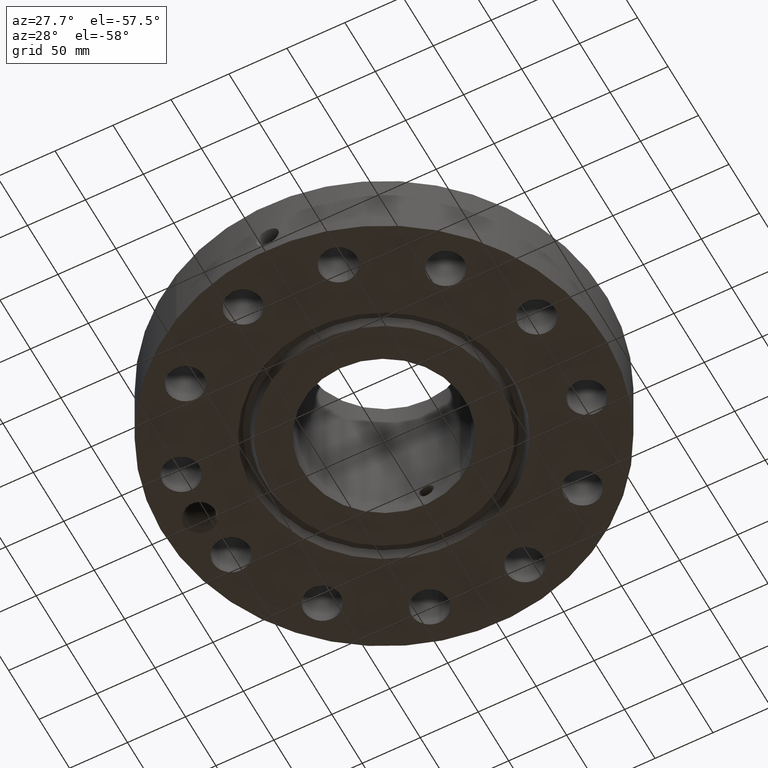
[diagram: clean part render]
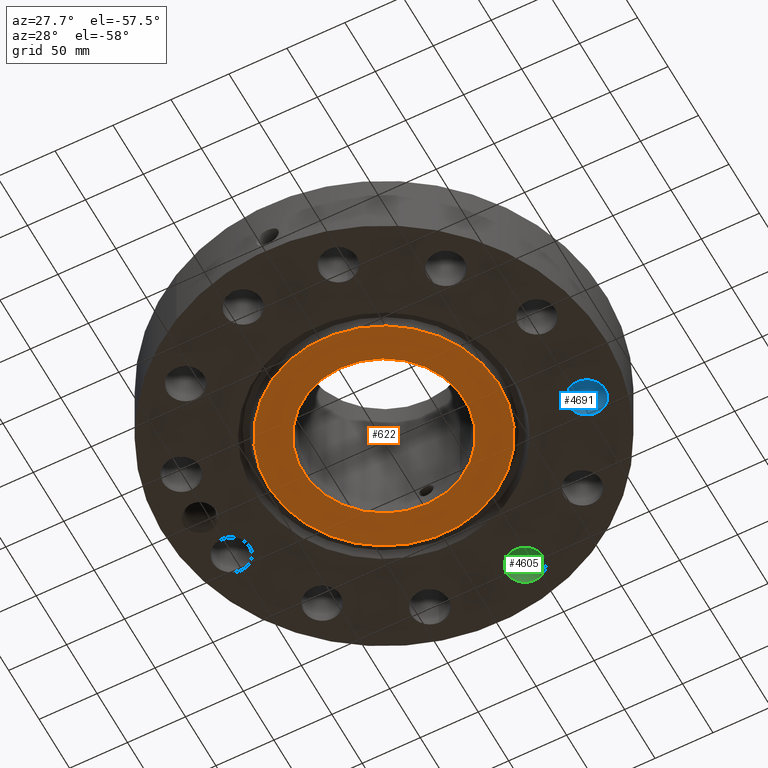
[diagram: same view with three faces highlighted in distinct colors, each labeled with its STEP entity id]
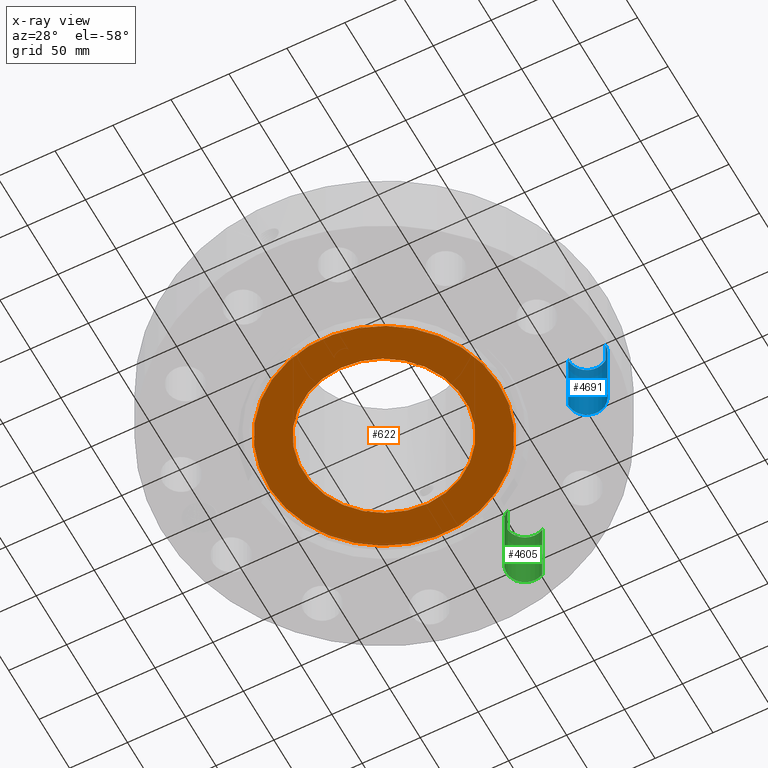
[diagram: x-ray of the same camera — body ghosted, the three highlighted faces saturated]
A machine part, auxiliary view with three faces highlighted in distinct colors.
The next image is the same camera in x-ray (body ghosted, the three faces saturated) — at least one of them is partly hidden behind the body in this view.
Their STEP definitions:

[orange] entity #622 — the highlighted planar face has unit normal (0, 0, -1).
#252=AXIS2_PLACEMENT_3D('Circle Axis2P3D',#250,#251,$) ;
#543=AXIS2_PLACEMENT_3D('Circle Axis2P3D',#541,#542,$) ;
#598=AXIS2_PLACEMENT_3D('Plane Axis2P3D',#595,#596,#597) ;
#602=AXIS2_PLACEMENT_3D('Circle Axis2P3D',#600,#601,$) ;
#611=AXIS2_PLACEMENT_3D('Circle Axis2P3D',#609,#610,$) ;
#247=CARTESIAN_POINT('Vertex',(1.31865994394,2.41379083649,-8.39223703654E-015)) ;
#250=CARTESIAN_POINT('Axis2P3D Location',(0.,0.,-8.95171950564E-015)) ;
#254=CARTESIAN_POINT('Vertex',(-1.31865994394,-2.41379083649,-8.39223703654E-015)) ;
#541=CARTESIAN_POINT('Axis2P3D Location',(0.,0.,-8.95171950564E-015)) ;
#595=CARTESIAN_POINT('Axis2P3D Location',(0.,2.75050000001,0.)) ;
#600=CARTESIAN_POINT('Axis2P3D Location',(-5.59482469102E-016,5.59482469102E-016,0.)) ;
#604=CARTESIAN_POINT('Vertex',(-1.88006724964,3.44144001647,0.)) ;
#606=CARTESIAN_POINT('Vertex',(1.88006724964,-3.44144001647,2.09805925913E-016)) ;
#609=CARTESIAN_POINT('Axis2P3D Location',(5.59482469102E-016,0.,0.)) ;
#251=DIRECTION('Axis2P3D Direction',(0.,0.,-0.0393700787402)) ;
#542=DIRECTION('Axis2P3D Direction',(0.,0.,-0.0393700787402)) ;
#596=DIRECTION('Axis2P3D Direction',(0.,0.,-0.0393700787402)) ;
#597=DIRECTION('Axis2P3D XDirection',(0.0393700787402,0.,0.)) ;
#601=DIRECTION('Axis2P3D Direction',(0.,0.,-0.0393700787402)) ;
#610=DIRECTION('Axis2P3D Direction',(0.,0.,-0.0393700787402)) ;
#615=ORIENTED_EDGE('',*,*,#608,.T.) ;
#616=ORIENTED_EDGE('',*,*,#613,.T.) ;
#619=ORIENTED_EDGE('',*,*,#256,.F.) ;
#620=ORIENTED_EDGE('',*,*,#545,.F.) ;
#621=FACE_BOUND('',#618,.T.) ;
#622=ADVANCED_FACE('PartBody',(#617,#621),#599,.T.) ;
#253=CIRCLE('generated circle',#252,2.75050000001) ;
#544=CIRCLE('generated circle',#543,2.75050000001) ;
#603=CIRCLE('generated circle',#602,3.92150000002) ;
#612=CIRCLE('generated circle',#611,3.92150000002) ;
#256=EDGE_CURVE('',#248,#255,#253,.T.) ;
#545=EDGE_CURVE('',#255,#248,#544,.T.) ;
#608=EDGE_CURVE('',#605,#607,#603,.T.) ;
#613=EDGE_CURVE('',#607,#605,#612,.T.) ;
#614=EDGE_LOOP('',(#615,#616)) ;
#618=EDGE_LOOP('',(#619,#620)) ;
#617=FACE_OUTER_BOUND('',#614,.T.) ;
#599=PLANE('',#598) ;
#248=VERTEX_POINT('',#247) ;
#255=VERTEX_POINT('',#254) ;
#605=VERTEX_POINT('',#604) ;
#607=VERTEX_POINT('',#606) ;

[blue] entity #4691 — the highlighted cylindrical surface (edge-blend (fillet) strip) has radius 15.875 mm, axis along (0, 0, -1).
#3201=AXIS2_PLACEMENT_3D('Circle Axis2P3D',#3199,#3200,$) ;
#4664=AXIS2_PLACEMENT_3D('Cylinder Axis2P3D',#4661,#4662,#4663) ;
#4675=AXIS2_PLACEMENT_3D('Circle Axis2P3D',#4673,#4674,$) ;
#3194=CARTESIAN_POINT('Vertex',(6.66186239047,1.6323668977,2.50200000001)) ;
#3196=CARTESIAN_POINT('Vertex',(5.41221043819,1.60287116609,2.50200000001)) ;
#3199=CARTESIAN_POINT('Axis2P3D Location',(6.03703641433,1.6176190319,2.50200000001)) ;
#4661=CARTESIAN_POINT('Axis2P3D Location',(6.03703641433,1.6176190319,2.49806299214)) ;
#4666=CARTESIAN_POINT('Line Origine',(5.41221043819,1.60287116609,1.25100000001)) ;
#4670=CARTESIAN_POINT('Vertex',(5.41221043819,1.60287116609,0.)) ;
#4673=CARTESIAN_POINT('Axis2P3D Location',(6.03703641433,1.6176190319,0.)) ;
#4677=CARTESIAN_POINT('Vertex',(6.66186239047,1.6323668977,0.)) ;
#4680=CARTESIAN_POINT('Line Origine',(6.66186239047,1.6323668977,1.25100000001)) ;
#3200=DIRECTION('Axis2P3D Direction',(0.,0.,-0.0393700787402)) ;
#4662=DIRECTION('Axis2P3D Direction',(0.,0.,-0.0393700787402)) ;
#4663=DIRECTION('Axis2P3D XDirection',(0.039359116607,0.000928999420902,0.)) ;
#4667=DIRECTION('Vector Direction',(0.,0.,-0.0393700787402)) ;
#4674=DIRECTION('Axis2P3D Direction',(0.,0.,-0.0393700787402)) ;
#4681=DIRECTION('Vector Direction',(0.,0.,-0.0393700787402)) ;
#4668=VECTOR('Line Direction',#4667,0.0393700787402) ;
#4682=VECTOR('Line Direction',#4681,0.0393700787402) ;
#4686=ORIENTED_EDGE('',*,*,#4672,.F.) ;
#4687=ORIENTED_EDGE('',*,*,#4679,.T.) ;
#4688=ORIENTED_EDGE('',*,*,#4684,.T.) ;
#4689=ORIENTED_EDGE('',*,*,#3203,.F.) ;
#4691=ADVANCED_FACE('PartBody',(#4690),#4665,.F.) ;
#3202=CIRCLE('generated circle',#3201,0.625000000003) ;
#4676=CIRCLE('generated circle',#4675,0.625000000003) ;
#4665=CYLINDRICAL_SURFACE('generated cylinder',#4664,0.625000000003) ;
#3203=EDGE_CURVE('',#3197,#3195,#3202,.T.) ;
#4672=EDGE_CURVE('',#4671,#3197,#4669,.F.) ;
#4679=EDGE_CURVE('',#4671,#4678,#4676,.T.) ;
#4684=EDGE_CURVE('',#4678,#3195,#4683,.F.) ;
#4685=EDGE_LOOP('',(#4686,#4687,#4688,#4689)) ;
#4690=FACE_OUTER_BOUND('',#4685,.T.) ;
#4669=LINE('Line',#4666,#4668) ;
#4683=LINE('Line',#4680,#4682) ;
#3195=VERTEX_POINT('',#3194) ;
#3197=VERTEX_POINT('',#3196) ;
#4671=VERTEX_POINT('',#4670) ;
#4678=VERTEX_POINT('',#4677) ;

[green] entity #4605 — the highlighted cylindrical surface (edge-blend (fillet) strip) has radius 15.875 mm, axis along (0, 0, -1).
#3165=AXIS2_PLACEMENT_3D('Circle Axis2P3D',#3163,#3164,$) ;
#4578=AXIS2_PLACEMENT_3D('Cylinder Axis2P3D',#4575,#4576,#4577) ;
#4589=AXIS2_PLACEMENT_3D('Circle Axis2P3D',#4587,#4588,$) ;
#3158=CARTESIAN_POINT('Vertex',(1.91725999353,6.58552551551,2.50200000001)) ;
#3160=CARTESIAN_POINT('Vertex',(1.31797807027,5.48854731315,2.50200000001)) ;
#3163=CARTESIAN_POINT('Axis2P3D Location',(1.6176190319,6.03703641433,2.50200000001)) ;
#4575=CARTESIAN_POINT('Axis2P3D Location',(1.6176190319,6.03703641433,2.49806299214)) ;
#4580=CARTESIAN_POINT('Line Origine',(1.31797807027,5.48854731315,1.25100000001)) ;
#4584=CARTESIAN_POINT('Vertex',(1.31797807027,5.48854731315,0.)) ;
#4587=CARTESIAN_POINT('Axis2P3D Location',(1.6176190319,6.03703641433,0.)) ;
#4591=CARTESIAN_POINT('Vertex',(1.91725999353,6.58552551551,0.)) ;
#4594=CARTESIAN_POINT('Line Origine',(1.91725999353,6.58552551551,1.25100000001)) ;
#3164=DIRECTION('Axis2P3D Direction',(0.,0.,-0.0393700787402)) ;
#4576=DIRECTION('Axis2P3D Direction',(0.,0.,-0.0393700787402)) ;
#4577=DIRECTION('Axis2P3D XDirection',(0.0188750212049,0.0345504945626,0.)) ;
#4581=DIRECTION('Vector Direction',(0.,0.,-0.0393700787402)) ;
#4588=DIRECTION('Axis2P3D Direction',(0.,0.,-0.0393700787402)) ;
#4595=DIRECTION('Vector Direction',(0.,0.,-0.0393700787402)) ;
#4582=VECTOR('Line Direction',#4581,0.0393700787402) ;
#4596=VECTOR('Line Direction',#4595,0.0393700787402) ;
#4600=ORIENTED_EDGE('',*,*,#4586,.F.) ;
#4601=ORIENTED_EDGE('',*,*,#4593,.T.) ;
#4602=ORIENTED_EDGE('',*,*,#4598,.T.) ;
#4603=ORIENTED_EDGE('',*,*,#3167,.F.) ;
#4605=ADVANCED_FACE('PartBody',(#4604),#4579,.F.) ;
#3166=CIRCLE('generated circle',#3165,0.625000000002) ;
#4590=CIRCLE('generated circle',#4589,0.625000000002) ;
#4579=CYLINDRICAL_SURFACE('generated cylinder',#4578,0.625000000002) ;
#3167=EDGE_CURVE('',#3161,#3159,#3166,.T.) ;
#4586=EDGE_CURVE('',#4585,#3161,#4583,.F.) ;
#4593=EDGE_CURVE('',#4585,#4592,#4590,.T.) ;
#4598=EDGE_CURVE('',#4592,#3159,#4597,.F.) ;
#4599=EDGE_LOOP('',(#4600,#4601,#4602,#4603)) ;
#4604=FACE_OUTER_BOUND('',#4599,.T.) ;
#4583=LINE('Line',#4580,#4582) ;
#4597=LINE('Line',#4594,#4596) ;
#3159=VERTEX_POINT('',#3158) ;
#3161=VERTEX_POINT('',#3160) ;
#4585=VERTEX_POINT('',#4584) ;
#4592=VERTEX_POINT('',#4591) ;